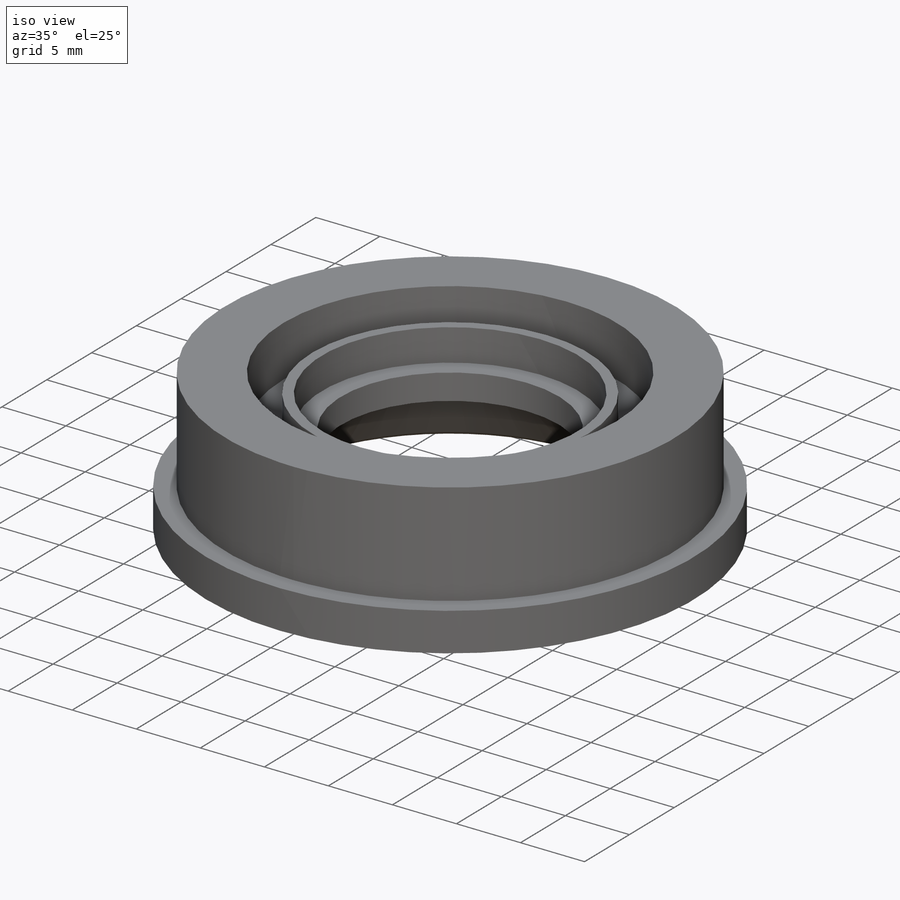
[diagram: iso view]
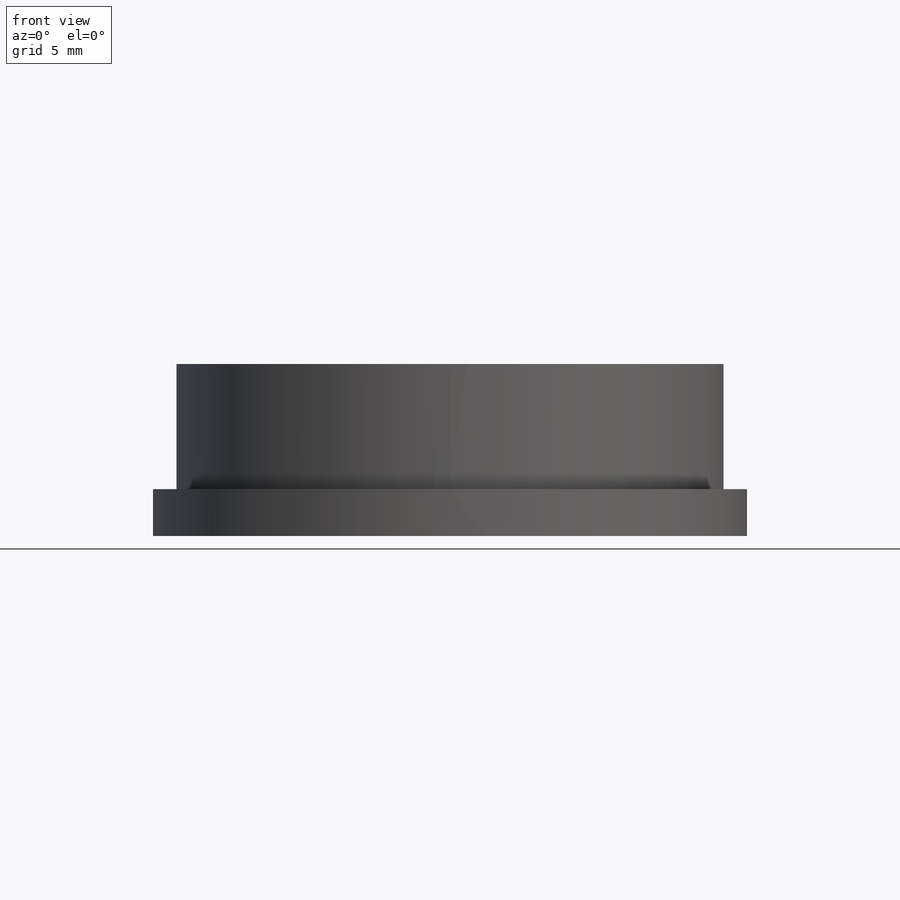
[diagram: front view]
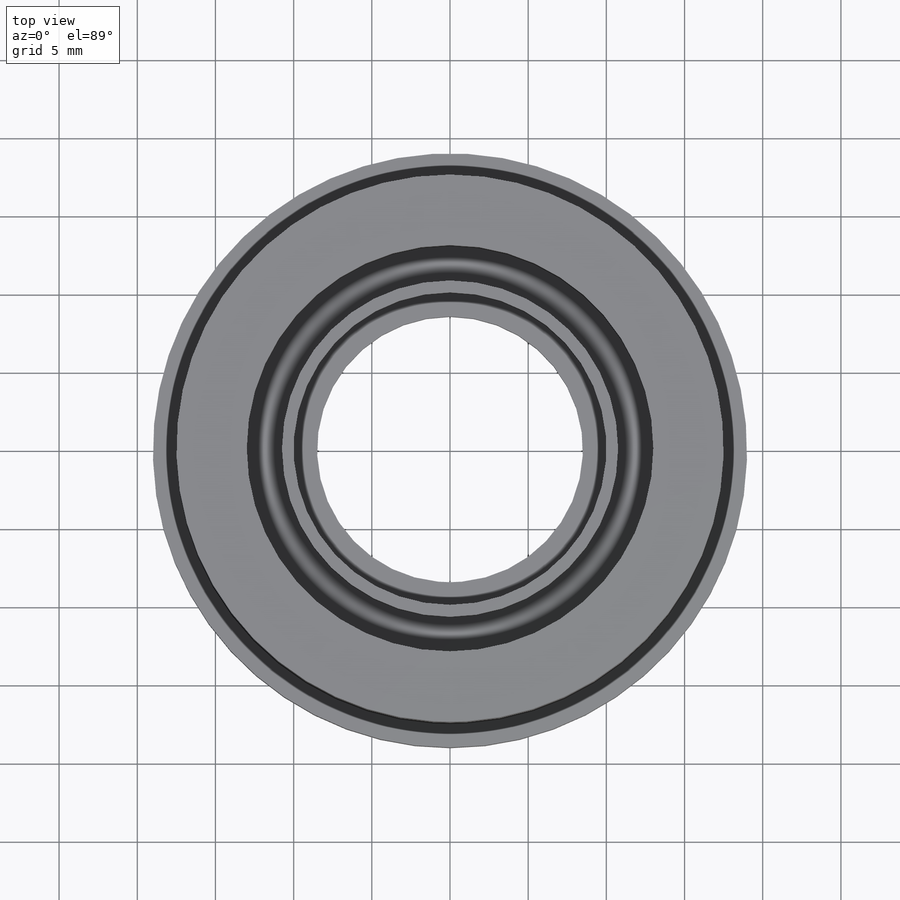
[diagram: top view]
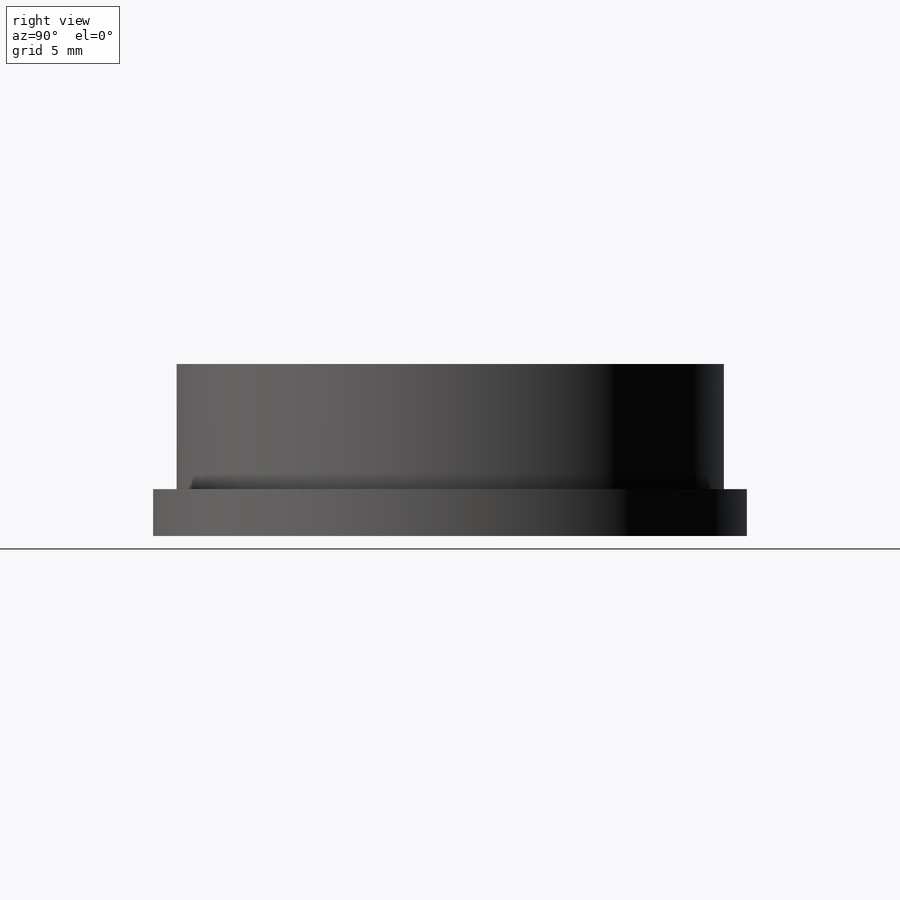
[diagram: right view]
SOLIDWORKS PART (.sldprt)
format: sldprt  version: not decoded by parser v0  size: 242,688 bytes
history: native  units: mm
features: sketch x7, extrude x4, cut_extrude x3, material x1, dome x1, chamfer x1, fillet x1 (+13 scaffold rows collapsed)
feature tree (31):
  scaffold x13  (default folders/planes/origin — collapsed)
  material  "Material <not specified>"
  sketch  "Sketch1"  dims[D1=38.0mm]
  extrude  "Boss-Extrude1"  Depth=5mm
  sketch  "Sketch3"  dims[c1.D1=~2.213972mm c1.D2=~14.461928mm c2.D1=~18.702191mm]
  extrude  "Boss-Extrude2"  Depth=4mm
  dome  "Dome7"
  sketch  "Sketch6"  dims[D1=9.5mm]
  cut_extrude  "Cut-Extrude2"  Depth=6mm
  sketch  "Sketch18"  dims[D1=11.0mm]
  cut_extrude  "Cut-Extrude4"  Depth=5mm
  sketch  "Sketch7"  dims[D1=11.0mm]
  extrude  "Boss-Extrude3"  Depth=0.0001mm
  sketch  "Sketch19"  dims[D1=9.5mm]
  extrude  "Boss-Extrude4"  Depth=2.5mm
  chamfer  "Chamfer1"  Distance=4.5mm Angle=52deg
  fillet  "Fillet1"  Radius=1mm
  sketch  "Sketch21"  dims[D1=~40.388526mm]
  cut_extrude  "Cut-Extrude7"  Depth=4mm
decode coverage: 16 of 17 modeling features carry decoded parameters
note: ~ marks probable driven/reference dimensions
note: suppression state not decoded; provenance and decode notes live in map.json
